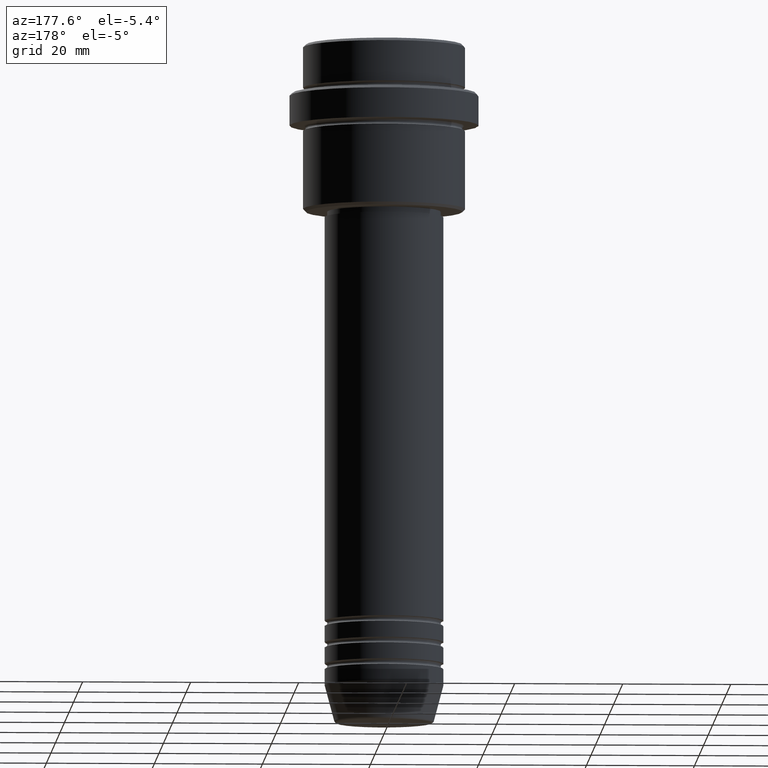
[diagram: clean part render]
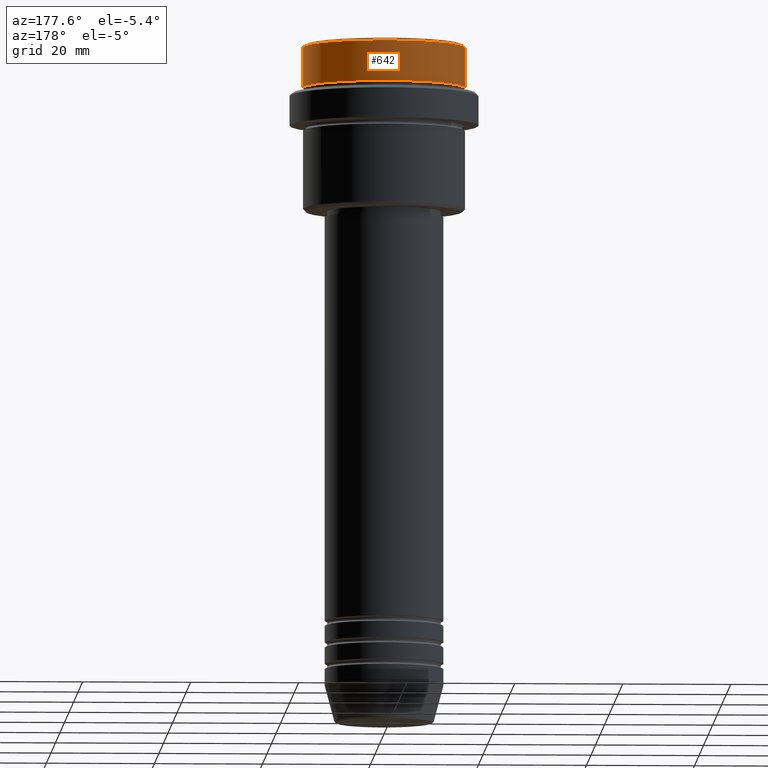
[diagram: same view with one face highlighted and labeled with its STEP entity id]
A machine part, auxiliary view. The second image highlights one B-rep face of the part: STEP entity #642.
In plain terms, the highlighted cylindrical surface (partial cylindrical patch) has radius 15 mm, axis along (-0, -0, 1).
Its self-contained STEP definition (entity closure, byte-faithful):
#10 = AXIS2_PLACEMENT_3D ( 'NONE', #1324, #983, #118 ) ;
#18 = DIRECTION ( 'NONE',  ( 1.000000000000000000, 0.000000000000000000, 0.000000000000000000 ) ) ;
#24 = ORIENTED_EDGE ( 'NONE', *, *, #66, .F. ) ;
#55 = FACE_OUTER_BOUND ( 'NONE', #884, .T. ) ;
#66 = EDGE_CURVE ( 'NONE', #340, #1295, #495, .T. ) ;
#112 = ORIENTED_EDGE ( 'NONE', *, *, #1184, .T. ) ;
#118 = DIRECTION ( 'NONE',  ( 1.000000000000000000, 0.000000000000000000, 0.000000000000000000 ) ) ;
#211 = VECTOR ( 'NONE', #1049, 1000.000000000000000 ) ;
#295 = AXIS2_PLACEMENT_3D ( 'NONE', #1336, #697, #18 ) ;
#330 = CARTESIAN_POINT ( 'NONE',  ( 15.00000000000000000, 0.000000000000000000, -7.999999999999998224 ) ) ;
#340 = VERTEX_POINT ( 'NONE', #330 ) ;
#448 = VECTOR ( 'NONE', #524, 1000.000000000000000 ) ;
#495 = LINE ( 'NONE', #1237, #211 ) ;
#524 = DIRECTION ( 'NONE',  ( -0.000000000000000000, -0.000000000000000000, 1.000000000000000000 ) ) ;
#529 = AXIS2_PLACEMENT_3D ( 'NONE', #718, #953, #1062 ) ;
#533 = VERTEX_POINT ( 'NONE', #1136 ) ;
#587 = ORIENTED_EDGE ( 'NONE', *, *, #1118, .T. ) ;
#642 = ADVANCED_FACE ( 'NONE', ( #55 ), #947, .T. ) ;
#647 = CARTESIAN_POINT ( 'NONE',  ( -15.00000000000000000, 1.836970198721029589E-15, 0.000000000000000000 ) ) ;
#697 = DIRECTION ( 'NONE',  ( 0.000000000000000000, 0.000000000000000000, -1.000000000000000000 ) ) ;
#718 = CARTESIAN_POINT ( 'NONE',  ( 0.000000000000000000, 0.000000000000000000, 0.000000000000000000 ) ) ;
#776 = CARTESIAN_POINT ( 'NONE',  ( -15.00000000000000000, 1.836970198721029589E-15, -0.4999999999999970024 ) ) ;
#863 = ORIENTED_EDGE ( 'NONE', *, *, #1046, .T. ) ;
#884 = EDGE_LOOP ( 'NONE', ( #112, #587, #863, #24 ) ) ;
#911 = CIRCLE ( 'NONE', #295, 15.00000000000000000 ) ;
#945 = LINE ( 'NONE', #647, #448 ) ;
#947 = CYLINDRICAL_SURFACE ( 'NONE', #529, 15.00000000000000000 ) ;
#953 = DIRECTION ( 'NONE',  ( -0.000000000000000000, -0.000000000000000000, 1.000000000000000000 ) ) ;
#983 = DIRECTION ( 'NONE',  ( -0.000000000000000000, -0.000000000000000000, 1.000000000000000000 ) ) ;
#997 = CIRCLE ( 'NONE', #10, 15.00000000000000000 ) ;
#1046 = EDGE_CURVE ( 'NONE', #1209, #1295, #911, .T. ) ;
#1049 = DIRECTION ( 'NONE',  ( -0.000000000000000000, -0.000000000000000000, 1.000000000000000000 ) ) ;
#1062 = DIRECTION ( 'NONE',  ( 1.000000000000000000, 0.000000000000000000, 0.000000000000000000 ) ) ;
#1108 = CARTESIAN_POINT ( 'NONE',  ( 15.00000000000000000, 0.000000000000000000, -0.4999999999999970024 ) ) ;
#1118 = EDGE_CURVE ( 'NONE', #533, #1209, #945, .T. ) ;
#1136 = CARTESIAN_POINT ( 'NONE',  ( -15.00000000000000000, 1.836970198721029589E-15, -7.999999999999998224 ) ) ;
#1184 = EDGE_CURVE ( 'NONE', #340, #533, #997, .T. ) ;
#1209 = VERTEX_POINT ( 'NONE', #776 ) ;
#1237 = CARTESIAN_POINT ( 'NONE',  ( 15.00000000000000000, 0.000000000000000000, 0.000000000000000000 ) ) ;
#1295 = VERTEX_POINT ( 'NONE', #1108 ) ;
#1324 = CARTESIAN_POINT ( 'NONE',  ( 0.000000000000000000, 0.000000000000000000, -7.999999999999998224 ) ) ;
#1336 = CARTESIAN_POINT ( 'NONE',  ( 0.000000000000000000, 0.000000000000000000, -0.4999999999999970024 ) ) ;